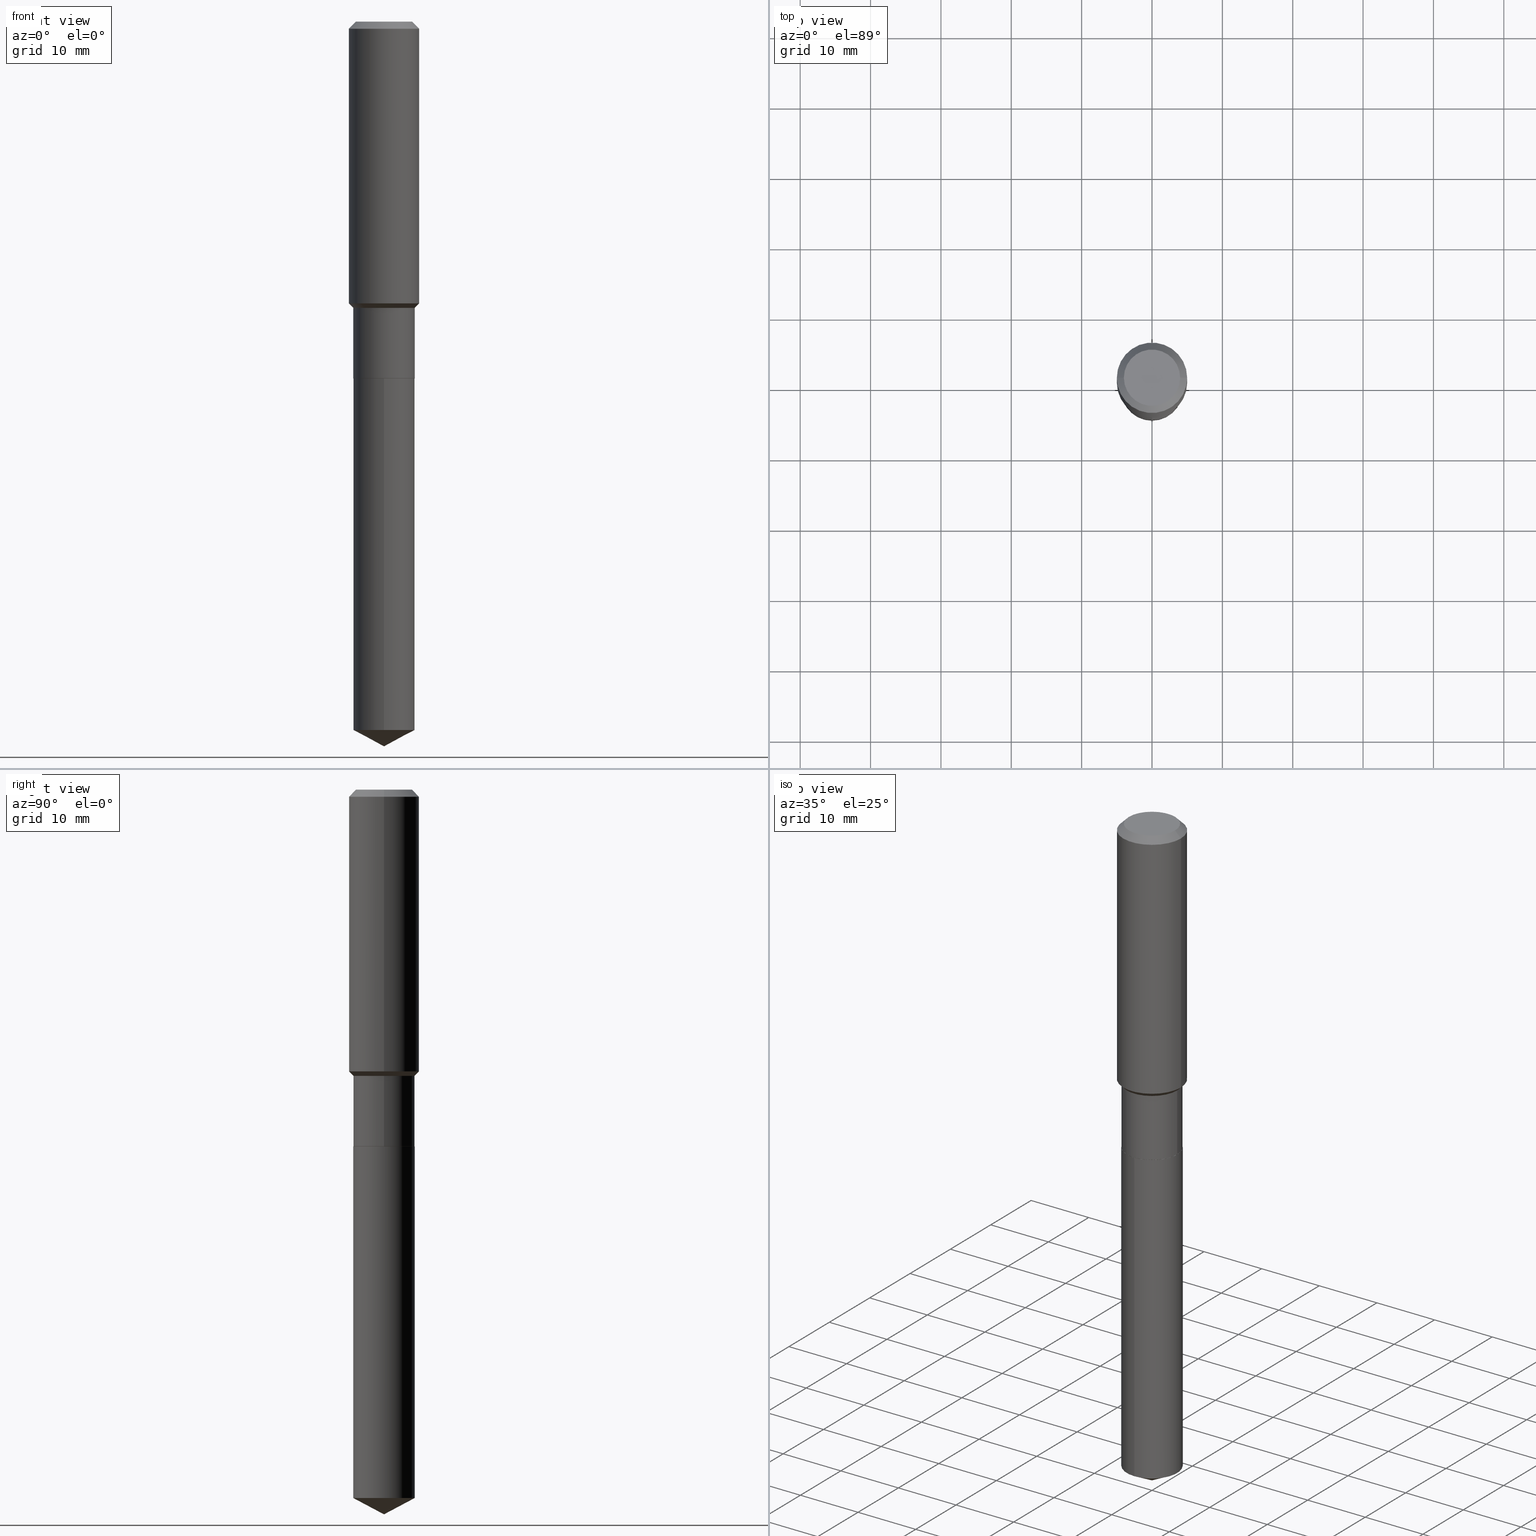
[diagram: canonical four-view strip — front | top / right | iso, engineering-drawing reading convention]
A machine part, canonical four-view strip (front | top / right | iso — engineering-drawing reading convention). The complete STEP part file that produces these views, byte-faithful:
ISO-10303-21;
HEADER;
FILE_DESCRIPTION (( 'STEP AP203' ),
    '1' );
FILE_NAME ('55018.STEP',
    '2024-04-24T16:24:03',
    ( '' ),
    ( '' ),
    'SwSTEP 2.0',
    'SolidWorks 2023',
    '' );
FILE_SCHEMA (( 'CONFIG_CONTROL_DESIGN' ));
ENDSEC;

DATA;
#1 = FACE_OUTER_BOUND ( 'NONE', #67, .T. ) ;
#2 = ADVANCED_FACE ( 'NONE', ( #182 ), #406, .T. ) ;
#3 = AXIS2_PLACEMENT_3D ( 'NONE', #8, #384, #45 ) ;
#4 = DIRECTION ( 'NONE',  ( 1.000000000000000000, -6.982962677686268288E-15, 0.000000000000000000 ) ) ;
#5 = CONICAL_SURFACE ( 'NONE', #404, 0.1968500000000000250, 0.7853981633974449483 ) ;
#6 = DIRECTION ( 'NONE',  ( -2.445468806185136597E-29, 3.491481338843145583E-15, 1.000000000000000000 ) ) ;
#7 = EDGE_CURVE ( 'NONE', #360, #12, #200, .T. ) ;
#8 = CARTESIAN_POINT ( 'NONE',  ( -8.636181159528330235E-28, 1.233020985790993605E-13, 35.31507874015748172 ) ) ;
#9 = VECTOR ( 'NONE', #277, 39.37007874015748143 ) ;
#10 = LOCAL_TIME ( 12, 24, 3.000000000000000000, #329 ) ;
#11 = CARTESIAN_POINT ( 'NONE',  ( 9.692852182386165404E-29, -1.383884090570368808E-14, -3.963599148697392494 ) ) ;
#12 = VERTEX_POINT ( 'NONE', #446 ) ;
#13 = DIRECTION ( 'NONE',  ( -6.982962677686266711E-15, -1.000000000000000000, 3.178415350394722068E-15 ) ) ;
#14 = EDGE_CURVE ( 'NONE', #140, #437, #72, .T. ) ;
#15 = VERTEX_POINT ( 'NONE', #371 ) ;
#16 = FACE_OUTER_BOUND ( 'NONE', #295, .T. ) ;
#17 = CONICAL_SURFACE ( 'NONE', #206, 74.04434902938389484, 1.082104136236488490 ) ;
#18 = CC_DESIGN_APPROVAL ( #56, ( #207 ) ) ;
#19 = EDGE_LOOP ( 'NONE', ( #109, #292, #434, #126 ) ) ;
#20 = DIRECTION ( 'NONE',  ( 2.438088387897960049E-29, -3.491481338843145188E-15, -1.000000000000000000 ) ) ;
#21 = ORIENTED_EDGE ( 'NONE', *, *, #270, .F. ) ;
#22 = CARTESIAN_POINT ( 'NONE',  ( 0.1968500000000000250, -1.512055823412797189E-15, -0.03937000000000027283 ) ) ;
#23 = ORIENTED_EDGE ( 'NONE', *, *, #234, .T. ) ;
#24 = EDGE_CURVE ( 'NONE', #130, #325, #313, .T. ) ;
#25 = EDGE_LOOP ( 'NONE', ( #209, #358 ) ) ;
#26 = LENGTH_MEASURE_WITH_UNIT ( LENGTH_MEASURE( 0.02539999999999999897 ), #362 );
#27 = CARTESIAN_POINT ( 'NONE',  ( 3.916173746224877726E-29, -5.591258216023413300E-15, -1.601399999999999935 ) ) ;
#28 = CIRCLE ( 'NONE', #240, 0.1718999999999999695 ) ;
#29 = ORIENTED_EDGE ( 'NONE', *, *, #159, .F. ) ;
#30 = APPLICATION_CONTEXT ( 'configuration controlled 3d designs of mechanical parts and assemblies' ) ;
#31 = CARTESIAN_POINT ( 'NONE',  ( 4.883112112190480497E-29, -6.971789937401992754E-15, -1.996799999999999908 ) ) ;
#32 = APPROVAL ( #407, 'UNSPECIFIED' ) ;
#33 = EDGE_LOOP ( 'NONE', ( #396, #211, #83, #370 ) ) ;
#34 = DIRECTION ( 'NONE',  ( -2.445468806185136597E-29, 3.491481338843145583E-15, 1.000000000000000000 ) ) ;
#35 = DIRECTION ( 'NONE',  ( 1.000000000000000000, -6.982962677686266711E-15, 4.876176775795936353E-29 ) ) ;
#36 = CARTESIAN_POINT ( 'NONE',  ( -1.200371284294220332E-15, -0.1719000000000069361, -1.996799999999999020 ) ) ;
#37 = CONICAL_SURFACE ( 'NONE', #458, 0.1718999999999999417, 0.7853981633974489451 ) ;
#38 = ORIENTED_EDGE ( 'NONE', *, *, #242, .F. ) ;
#39 = AXIS2_PLACEMENT_3D ( 'NONE', #310, #462, #422 ) ;
#40 = DIRECTION ( 'NONE',  ( -2.445468806185136597E-29, 3.491481338843145583E-15, 1.000000000000000000 ) ) ;
#41 = ORIENTED_EDGE ( 'NONE', *, *, #187, .F. ) ;
#42 = DATE_AND_TIME ( #120, #454 ) ;
#43 = DIRECTION ( 'NONE',  ( 6.982962677686265922E-15, 1.000000000000000000, -3.491485631794039954E-15 ) ) ;
#44 = ADVANCED_FACE ( 'NONE', ( #377 ), #473, .T. ) ;
#45 = DIRECTION ( 'NONE',  ( -6.982962677686265133E-15, -1.000000000000000000, 3.541896320645543908E-15 ) ) ;
#46 = DATE_TIME_ROLE ( 'classification_date' ) ;
#47 = CARTESIAN_POINT ( 'NONE',  ( 4.883112112190479937E-29, -6.971789937401991965E-15, -1.996799999999999686 ) ) ;
#48 = AXIS2_PLACEMENT_3D ( 'NONE', #471, #66, #478 ) ;
#49 = CIRCLE ( 'NONE', #464, 0.1968500000000002192 ) ;
#50 = CC_DESIGN_DATE_AND_TIME_ASSIGNMENT ( #232, #46, ( #273 ) ) ;
#51 = CYLINDRICAL_SURFACE ( 'NONE', #465, 0.1718999999999999695 ) ;
#52 = AXIS2_PLACEMENT_3D ( 'NONE', #397, #210, #106 ) ;
#53 = ORIENTED_EDGE ( 'NONE', *, *, #203, .T. ) ;
#54 = ORIENTED_EDGE ( 'NONE', *, *, #92, .F. ) ;
#55 = FACE_OUTER_BOUND ( 'NONE', #368, .T. ) ;
#56 = APPROVAL ( #105, 'UNSPECIFIED' ) ;
#57 = CARTESIAN_POINT ( 'NONE',  ( 0.1718999999999999417, -6.791629500317682541E-15, -1.601399999999999935 ) ) ;
#58 = CYLINDRICAL_SURFACE ( 'NONE', #383, 0.1968500000000001082 ) ;
#59 = CLOSED_SHELL ( 'NONE', ( #330, #90, #44, #445, #389 ) ) ;
#60 = PLANE ( 'NONE',  #483 ) ;
#61 = CIRCLE ( 'NONE', #161, 0.1718999999999999695 ) ;
#62 = EDGE_LOOP ( 'NONE', ( #21, #366, #53, #29 ) ) ;
#63 = CARTESIAN_POINT ( 'NONE',  ( 0.000000000000000000, 0.000000000000000000, 0.000000000000000000 ) ) ;
#64 = EDGE_CURVE ( 'NONE', #219, #325, #89, .T. ) ;
#65 = DIRECTION ( 'NONE',  ( 0.7071067811864267805, -2.468850131080992517E-15, 0.7071067811866682540 ) ) ;
#66 = DIRECTION ( 'NONE',  ( -2.445468806185136597E-29, 3.491481338843145583E-15, 1.000000000000000000 ) ) ;
#67 = EDGE_LOOP ( 'NONE', ( #41, #150, #351, #480 ) ) ;
#68 = ORIENTED_EDGE ( 'NONE', *, *, #346, .F. ) ;
#69 = DIRECTION ( 'NONE',  ( 1.000000000000000000, -6.982962677686266711E-15, 4.876176775795935793E-29 ) ) ;
#70 = CARTESIAN_POINT ( 'NONE',  ( 4.883112112190479937E-29, -6.971789937401991965E-15, -1.996799999999999686 ) ) ;
#71 = ORIENTED_EDGE ( 'NONE', *, *, #311, .T. ) ;
#72 = CIRCLE ( 'NONE', #218, 0.1718999999999999417 ) ;
#73 = APPROVAL_PERSON_ORGANIZATION ( #113, #56, #80 ) ;
#74 = ORIENTED_EDGE ( 'NONE', *, *, #115, .T. ) ;
#75 = PERSON_AND_ORGANIZATION_ROLE ( 'creator' ) ;
#76 = CARTESIAN_POINT ( 'NONE',  ( -0.1718999999999999417, -4.369835253251801494E-15, -1.601399999999999935 ) ) ;
#77 = ORIENTED_EDGE ( 'NONE', *, *, #64, .F. ) ;
#78 = LINE ( 'NONE', #36, #386 ) ;
#79 = ORIENTED_EDGE ( 'NONE', *, *, #153, .F. ) ;
#80 = APPROVAL_ROLE ( '' ) ;
#81 = PLANE ( 'NONE',  #128 ) ;
#82 = AXIS2_PLACEMENT_3D ( 'NONE', #222, #489, #35 ) ;
#83 = ORIENTED_EDGE ( 'NONE', *, *, #143, .T. ) ;
#84 = PRODUCT_DEFINITION ( 'UNKNOWN', '', #207, #271 ) ;
#85 = CARTESIAN_POINT ( 'NONE',  ( 0.1718999999999999695, -8.170415481026838913E-15, -1.996299999999999741 ) ) ;
#86 = PERSON_AND_ORGANIZATION_ROLE ( 'creator' ) ;
#87 = FACE_OUTER_BOUND ( 'NONE', #25, .T. ) ;
#88 = DIRECTION ( 'NONE',  ( -2.445465808433549493E-29, 3.491485631794039954E-15, 1.000000000000000000 ) ) ;
#89 = LINE ( 'NONE', #305, #431 ) ;
#90 = ADVANCED_FACE ( 'NONE', ( #55 ), #17, .T. ) ;
#91 = VECTOR ( 'NONE', #141, 39.37007874015748143 ) ;
#92 = EDGE_CURVE ( 'NONE', #12, #360, #228, .T. ) ;
#93 = VERTEX_POINT ( 'NONE', #165 ) ;
#94 = EDGE_LOOP ( 'NONE', ( #171, #180, #484, #393 ) ) ;
#95 = DIRECTION ( 'NONE',  ( 1.000000000000000000, -6.982962677686269077E-15, 0.000000000000000000 ) ) ;
#96 = EDGE_LOOP ( 'NONE', ( #472, #135, #286, #79 ) ) ;
#97 = PERSON_AND_ORGANIZATION ( #276, #119 ) ;
#98 = CARTESIAN_POINT ( 'NONE',  ( -0.1968500000000000250, 1.237136582792286225E-15, -0.03937000000000027283 ) ) ;
#99 = VECTOR ( 'NONE', #331, 39.37007874015748143 ) ;
#100 = AXIS2_PLACEMENT_3D ( 'NONE', #204, #167, #243 ) ;
#101 = DIRECTION ( 'NONE',  ( 1.000000000000000000, -6.982962677686265922E-15, 0.000000000000000000 ) ) ;
#102 = DIRECTION ( 'NONE',  ( -6.982962677686266711E-15, -1.000000000000000000, 3.178415350394722068E-15 ) ) ;
#103 = VERTEX_POINT ( 'NONE', #469 ) ;
#104 = APPLICATION_CONTEXT ( 'configuration controlled 3d designs of mechanical parts and assemblies' ) ;
#105 = APPROVAL_STATUS ( 'not_yet_approved' ) ;
#106 = DIRECTION ( 'NONE',  ( 1.000000000000000000, -6.982962677686266711E-15, 4.876176775795935793E-29 ) ) ;
#107 = EDGE_CURVE ( 'NONE', #426, #15, #272, .T. ) ;
#108 = AXIS2_PLACEMENT_3D ( 'NONE', #31, #327, #475 ) ;
#109 = ORIENTED_EDGE ( 'NONE', *, *, #421, .T. ) ;
#110 = DATE_AND_TIME ( #296, #178 ) ;
#111 = CARTESIAN_POINT ( 'NONE',  ( -0.1968500000000000250, -1.422099313121007378E-15, -0.03937000000000027283 ) ) ;
#112 = DIRECTION ( 'NONE',  ( -2.445468806185136597E-29, 3.491481338843145583E-15, 1.000000000000000000 ) ) ;
#113 = PERSON_AND_ORGANIZATION ( #276, #119 ) ;
#114 = DIRECTION ( 'NONE',  ( -2.445468806185136597E-29, 3.491481338843145583E-15, 1.000000000000000000 ) ) ;
#115 = EDGE_CURVE ( 'NONE', #328, #437, #395, .T. ) ;
#116 = DIRECTION ( 'NONE',  ( -2.445468806185136597E-29, 3.491481338843145583E-15, 1.000000000000000000 ) ) ;
#117 = CARTESIAN_POINT ( 'NONE',  ( -1.200371284294172211E-15, -0.1719000000000137640, -3.963599148697392049 ) ) ;
#118 = AXIS2_PLACEMENT_3D ( 'NONE', #258, #405, #408 ) ;
#119 = ORGANIZATION ( 'UNSPECIFIED', 'UNSPECIFIED', '' ) ;
#120 = CALENDAR_DATE ( 2024, 24, 4 ) ;
#121 = CARTESIAN_POINT ( 'NONE',  ( 0.1968500000000001082, -1.374596203102542397E-15, 9.598753983154305062E-30 ) ) ;
#122 = CC_DESIGN_PERSON_AND_ORGANIZATION_ASSIGNMENT ( #468, #132, ( #151 ) ) ;
#123 = AXIS2_PLACEMENT_3D ( 'NONE', #367, #414, #302 ) ;
#124 = AXIS2_PLACEMENT_3D ( 'NONE', #156, #199, #343 ) ;
#125 = FACE_OUTER_BOUND ( 'NONE', #345, .T. ) ;
#126 = ORIENTED_EDGE ( 'NONE', *, *, #311, .F. ) ;
#127 = CIRCLE ( 'NONE', #196, 0.1574800000000000089 ) ;
#128 = AXIS2_PLACEMENT_3D ( 'NONE', #47, #227, #43 ) ;
#129 = DIRECTION ( 'NONE',  ( -2.445468806185136597E-29, 3.491481338843145583E-15, 1.000000000000000000 ) ) ;
#130 = VERTEX_POINT ( 'NONE', #22 ) ;
#131 = EDGE_CURVE ( 'NONE', #354, #93, #189, .T. ) ;
#132 = PERSON_AND_ORGANIZATION_ROLE ( 'design_owner' ) ;
#133 = DIRECTION ( 'NONE',  ( -2.445468806185136597E-29, 3.491481338843145583E-15, 1.000000000000000000 ) ) ;
#134 = MANIFOLD_SOLID_BREP ( 'Body-Move/Copy2[2]', #373 ) ;
#135 = ORIENTED_EDGE ( 'NONE', *, *, #187, .T. ) ;
#136 = DIRECTION ( 'NONE',  ( -2.445468806185136597E-29, 3.491481338843145583E-15, 1.000000000000000000 ) ) ;
#137 = CARTESIAN_POINT ( 'NONE',  ( 0.1968500000000000250, -1.487948651171581601E-15, -0.03937000000000027283 ) ) ;
#138 = AXIS2_PLACEMENT_3D ( 'NONE', #70, #213, #102 ) ;
#139 = AXIS2_PLACEMENT_3D ( 'NONE', #162, #6, #201 ) ;
#140 = VERTEX_POINT ( 'NONE', #427 ) ;
#141 = DIRECTION ( 'NONE',  ( -2.445468806185136877E-29, 3.491481338843145188E-15, 1.000000000000000000 ) ) ;
#142 = ORIENTED_EDGE ( 'NONE', *, *, #374, .T. ) ;
#143 = EDGE_CURVE ( 'NONE', #93, #337, #172, .T. ) ;
#144 = DIRECTION ( 'NONE',  ( 1.000000000000000000, -6.982962677686265922E-15, 4.876223630392693006E-29 ) ) ;
#145 = ORIENTED_EDGE ( 'NONE', *, *, #481, .F. ) ;
#146 = PERSON_AND_ORGANIZATION ( #276, #119 ) ;
#147 = CARTESIAN_POINT ( 'NONE',  ( 9.916363853198043605E-29, -1.415797423692483087E-14, -4.054999999999999716 ) ) ;
#148 = ORIENTED_EDGE ( 'NONE', *, *, #242, .T. ) ;
#149 = CONICAL_SURFACE ( 'NONE', #245, 0.1718999999999999417, 0.7853981633974489451 ) ;
#150 = ORIENTED_EDGE ( 'NONE', *, *, #400, .F. ) ;
#151 = PRODUCT ( '55018', '55018', '', ( #175 ) ) ;
#152 = CARTESIAN_POINT ( 'NONE',  ( 3.916173746224877726E-29, -5.591258216023413300E-15, -1.601399999999999935 ) ) ;
#153 = EDGE_CURVE ( 'NONE', #428, #325, #353, .T. ) ;
#154 = DIRECTION ( 'NONE',  ( 6.273719981627772387E-15, 0.8829475928589306521, 0.4694715627858840334 ) ) ;
#155 = ORIENTED_EDGE ( 'NONE', *, *, #256, .F. ) ;
#156 = CARTESIAN_POINT ( 'NONE',  ( 0.000000000000000000, 0.000000000000000000, 0.000000000000000000 ) ) ;
#157 = AXIS2_PLACEMENT_3D ( 'NONE', #185, #229, #476 ) ;
#158 = DIRECTION ( 'NONE',  ( 2.445468806185136597E-29, -3.491481338843145583E-15, -1.000000000000000000 ) ) ;
#159 = EDGE_CURVE ( 'NONE', #219, #103, #49, .T. ) ;
#160 = CARTESIAN_POINT ( 'NONE',  ( 4.883112112190479937E-29, -6.971789937401991965E-15, -1.996799999999999686 ) ) ;
#161 = AXIS2_PLACEMENT_3D ( 'NONE', #291, #357, #390 ) ;
#162 = CARTESIAN_POINT ( 'NONE',  ( 3.855159299510557695E-29, -5.504145756619275933E-15, -1.576449999999999685 ) ) ;
#163 = EDGE_CURVE ( 'NONE', #15, #426, #312, .T. ) ;
#164 = DIRECTION ( 'NONE',  ( -2.445468806185136877E-29, 3.491481338843145188E-15, 1.000000000000000000 ) ) ;
#165 = CARTESIAN_POINT ( 'NONE',  ( 0.1713999999999999690, -8.168669740357418199E-15, -1.996799999999999908 ) ) ;
#166 = CIRCLE ( 'NONE', #236, 0.1968500000000000250 ) ;
#167 = DIRECTION ( 'NONE',  ( 0.000000000000000000, 0.000000000000000000, 1.000000000000000000 ) ) ;
#168 = PRODUCT_RELATED_PRODUCT_CATEGORY ( 'detail', '', ( #151 ) ) ;
#169 = LOCAL_TIME ( 12, 24, 3.000000000000000000, #378 ) ;
#170 = CARTESIAN_POINT ( 'NONE',  ( 2.660723506269796897E-29, -1.015437691158448916E-14, -1.996799999999999908 ) ) ;
#171 = ORIENTED_EDGE ( 'NONE', *, *, #14, .T. ) ;
#172 = LINE ( 'NONE', #173, #308 ) ;
#173 = CARTESIAN_POINT ( 'NONE',  ( 0.1713999999999999690, -8.168669740357418199E-15, -1.996799999999999908 ) ) ;
#174 = EDGE_LOOP ( 'NONE', ( #225, #74, #387, #68 ) ) ;
#175 = MECHANICAL_CONTEXT ( 'NONE', #104, 'mechanical' ) ;
#176 = DIRECTION ( 'NONE',  ( -2.445468806185136597E-29, 3.491481338843145583E-15, 1.000000000000000000 ) ) ;
#177 = CONICAL_SURFACE ( 'NONE', #452, 0.1713999999999999690, 0.7853981633972775267 ) ;
#178 = LOCAL_TIME ( 12, 24, 3.000000000000000000, #186 ) ;
#179 = ADVANCED_FACE ( 'NONE', ( #181 ), #436, .T. ) ;
#180 = ORIENTED_EDGE ( 'NONE', *, *, #270, .T. ) ;
#181 = FACE_OUTER_BOUND ( 'NONE', #248, .T. ) ;
#182 = FACE_OUTER_BOUND ( 'NONE', #466, .T. ) ;
#183 = APPROVAL_DATE_TIME ( #490, #365 ) ;
#184 = FACE_OUTER_BOUND ( 'NONE', #33, .T. ) ;
#185 = CARTESIAN_POINT ( 'NONE',  ( 9.692852182386165404E-29, -1.383884090570368808E-14, -3.963599148697392494 ) ) ;
#186 = COORDINATED_UNIVERSAL_TIME_OFFSET ( 5, 0, .BEHIND. ) ;
#187 = EDGE_CURVE ( 'NONE', #298, #130, #399, .T. ) ;
#188 = DIRECTION ( 'NONE',  ( -2.445465808433549493E-29, 3.491485631794039954E-15, 1.000000000000000000 ) ) ;
#189 = CIRCLE ( 'NONE', #48, 0.1713999999999999690 ) ;
#190 = LOCAL_TIME ( 12, 24, 3.000000000000000000, #477 ) ;
#191 = ORIENTED_EDGE ( 'NONE', *, *, #238, .F. ) ;
#192 = LINE ( 'NONE', #488, #376 ) ;
#193 = EDGE_LOOP ( 'NONE', ( #263, #401, #191, #274 ) ) ;
#194 = FACE_OUTER_BOUND ( 'NONE', #174, .T. ) ;
#195 = DIRECTION ( 'NONE',  ( 1.000000000000000000, -6.982962677686265922E-15, 4.876223630392693006E-29 ) ) ;
#196 = AXIS2_PLACEMENT_3D ( 'NONE', #316, #133, #144 ) ;
#197 = ADVANCED_FACE ( 'NONE', ( #285 ), #149, .T. ) ;
#198 = CONICAL_SURFACE ( 'NONE', #39, 0.1713999999999999690, 0.7853981633972775267 ) ;
#199 = DIRECTION ( 'NONE',  ( -2.445468806185136597E-29, 3.491481338843145583E-15, 1.000000000000000000 ) ) ;
#200 = CIRCLE ( 'NONE', #157, 0.1718999999999999695 ) ;
#201 = DIRECTION ( 'NONE',  ( 1.000000000000000000, -6.982962677686265922E-15, 0.000000000000000000 ) ) ;
#202 = DIRECTION ( 'NONE',  ( -2.445465808433549493E-29, 3.491485631794039954E-15, 1.000000000000000000 ) ) ;
#203 = EDGE_CURVE ( 'NONE', #140, #103, #439, .T. ) ;
#204 = CARTESIAN_POINT ( 'NONE',  ( 0.000000000000000000, 0.000000000000000000, 0.000000000000000000 ) ) ;
#205 = CARTESIAN_POINT ( 'NONE',  ( 9.916363853198042484E-29, -1.415797423692483087E-14, -4.054999999999999716 ) ) ;
#206 = AXIS2_PLACEMENT_3D ( 'NONE', #417, #88, #235 ) ;
#207 = PRODUCT_DEFINITION_FORMATION_WITH_SPECIFIED_SOURCE ( 'ANY', '', #151, .NOT_KNOWN. ) ;
#208 = CARTESIAN_POINT ( 'NONE',  ( -4.713871149261283817E-47, 6.730158695841841775E-33, 1.927594061857935365E-18 ) ) ;
#209 = ORIENTED_EDGE ( 'NONE', *, *, #163, .T. ) ;
#210 = DIRECTION ( 'NONE',  ( -2.445468806185136597E-29, 3.491481338843145583E-15, 1.000000000000000000 ) ) ;
#211 = ORIENTED_EDGE ( 'NONE', *, *, #131, .T. ) ;
#212 =( CONVERSION_BASED_UNIT ( 'INCH', #26 ) LENGTH_UNIT ( ) NAMED_UNIT ( #324 ) );
#213 = DIRECTION ( 'NONE',  ( -2.445465808433549493E-29, 3.491485631794039954E-15, 1.000000000000000000 ) ) ;
#214 = EDGE_CURVE ( 'NONE', #93, #354, #402, .T. ) ;
#215 = EDGE_LOOP ( 'NONE', ( #424, #364, #282, #441 ) ) ;
#216 = CARTESIAN_POINT ( 'NONE',  ( -0.1968500000000002192, -4.105442381275518145E-15, -1.576449999999999685 ) ) ;
#217 = EDGE_LOOP ( 'NONE', ( #355, #23 ) ) ;
#218 = AXIS2_PLACEMENT_3D ( 'NONE', #398, #112, #260 ) ;
#219 = VERTEX_POINT ( 'NONE', #216 ) ;
#220 = FACE_OUTER_BOUND ( 'NONE', #94, .T. ) ;
#221 = CC_DESIGN_PERSON_AND_ORGANIZATION_ASSIGNMENT ( #413, #257, ( #207 ) ) ;
#222 = CARTESIAN_POINT ( 'NONE',  ( 0.000000000000000000, 0.000000000000000000, 0.000000000000000000 ) ) ;
#223 = CYLINDRICAL_SURFACE ( 'NONE', #118, 0.1718999999999999695 ) ;
#224 = UNCERTAINTY_MEASURE_WITH_UNIT (LENGTH_MEASURE( 1.000000000000000082E-05 ), #212, 'distance_accuracy_value', 'NONE');
#225 = ORIENTED_EDGE ( 'NONE', *, *, #238, .T. ) ;
#226 = CALENDAR_DATE ( 2024, 24, 4 ) ;
#227 = DIRECTION ( 'NONE',  ( 2.445465808433548932E-29, -3.491485631794039954E-15, -1.000000000000000000 ) ) ;
#228 = CIRCLE ( 'NONE', #321, 0.1718999999999999695 ) ;
#229 = DIRECTION ( 'NONE',  ( -2.445465808433549493E-29, 3.491485631794039954E-15, 1.000000000000000000 ) ) ;
#230 = PERSON_AND_ORGANIZATION ( #276, #119 ) ;
#231 = FACE_OUTER_BOUND ( 'NONE', #96, .T. ) ;
#232 = DATE_AND_TIME ( #332, #169 ) ;
#233 = DIRECTION ( 'NONE',  ( -0.7071067811864267805, 7.493145998869918709E-15, 0.7071067811866682540 ) ) ;
#234 = EDGE_CURVE ( 'NONE', #298, #428, #127, .T. ) ;
#235 = DIRECTION ( 'NONE',  ( -6.982962677686265133E-15, -1.000000000000000000, 3.541896320645543908E-15 ) ) ;
#236 = AXIS2_PLACEMENT_3D ( 'NONE', #255, #444, #304 ) ;
#237 = CIRCLE ( 'NONE', #139, 0.1968500000000002192 ) ;
#238 = EDGE_CURVE ( 'NONE', #337, #328, #61, .T. ) ;
#239 = VECTOR ( 'NONE', #416, 39.37007874015748143 ) ;
#240 = AXIS2_PLACEMENT_3D ( 'NONE', #334, #114, #4 ) ;
#241 = ORIENTED_EDGE ( 'NONE', *, *, #7, .F. ) ;
#242 = EDGE_CURVE ( 'NONE', #323, #360, #388, .T. ) ;
#243 = DIRECTION ( 'NONE',  ( 1.000000000000000000, 0.000000000000000000, 0.000000000000000000 ) ) ;
#244 = FACE_OUTER_BOUND ( 'NONE', #217, .T. ) ;
#245 = AXIS2_PLACEMENT_3D ( 'NONE', #27, #176, #322 ) ;
#246 = CC_DESIGN_SECURITY_CLASSIFICATION ( #273, ( #207 ) ) ;
#247 = CARTESIAN_POINT ( 'NONE',  ( 3.855159299510557695E-29, -5.504145756619275933E-15, -1.576449999999999685 ) ) ;
#248 = EDGE_LOOP ( 'NONE', ( #77, #470, #71, #317 ) ) ;
#249 = LINE ( 'NONE', #429, #309 ) ;
#250 = ADVANCED_FACE ( 'NONE', ( #16 ), #349, .F. ) ;
#251 = CARTESIAN_POINT ( 'NONE',  ( -0.1718999999999999417, 1.221422962771611806E-15, -8.455649420148180377E-30 ) ) ;
#252 = ORIENTED_EDGE ( 'NONE', *, *, #115, .F. ) ;
#253 = DIRECTION ( 'NONE',  ( 0.7071067811865479058, -2.468850131082261399E-15, 0.7071067811865470176 ) ) ;
#254 = ORIENTED_EDGE ( 'NONE', *, *, #107, .F. ) ;
#255 = CARTESIAN_POINT ( 'NONE',  ( 9.627810689950950651E-31, -1.374596203102555808E-16, -0.03937000000000027283 ) ) ;
#256 = EDGE_CURVE ( 'NONE', #437, #140, #440, .T. ) ;
#257 = PERSON_AND_ORGANIZATION_ROLE ( 'design_supplier' ) ;
#258 = CARTESIAN_POINT ( 'NONE',  ( 4.883112112190479937E-29, -6.971789937401991965E-15, -1.996799999999999686 ) ) ;
#259 = ORIENTED_EDGE ( 'NONE', *, *, #346, .T. ) ;
#260 = DIRECTION ( 'NONE',  ( 1.000000000000000000, -6.982962677686269077E-15, 0.000000000000000000 ) ) ;
#261 = PERSON_AND_ORGANIZATION ( #276, #119 ) ;
#262 = CARTESIAN_POINT ( 'NONE',  ( 9.627810689950950651E-31, -1.374596203102555808E-16, -0.03937000000000027283 ) ) ;
#263 = ORIENTED_EDGE ( 'NONE', *, *, #214, .T. ) ;
#264 = CARTESIAN_POINT ( 'NONE',  ( 0.1574800000000000089, -1.284169937930321189E-15, 3.855188123724205385E-18 ) ) ;
#265 = VECTOR ( 'NONE', #253, 39.37007874015748854 ) ;
#266 = CALENDAR_DATE ( 2024, 24, 4 ) ;
#267 = ADVANCED_FACE ( 'NONE', ( #244 ), #60, .F. ) ;
#268 = CARTESIAN_POINT ( 'NONE',  ( 0.1718999999999999417, -1.200371284294268847E-15, 8.382147877593211677E-30 ) ) ;
#269 = FACE_OUTER_BOUND ( 'NONE', #19, .T. ) ;
#270 = EDGE_CURVE ( 'NONE', #437, #219, #293, .T. ) ;
#271 = DESIGN_CONTEXT ( 'detailed design', #30, 'design' ) ;
#272 = CIRCLE ( 'NONE', #138, 0.1718999999999999695 ) ;
#273 = SECURITY_CLASSIFICATION ( '', '', #372 ) ;
#274 = ORIENTED_EDGE ( 'NONE', *, *, #143, .F. ) ;
#275 = CC_DESIGN_PERSON_AND_ORGANIZATION_ASSIGNMENT ( #261, #450, ( #273 ) ) ;
#276 = PERSON ( 'UNSPECIFIED', 'UNSPECIFIED', 'UNSPECIFIED', ('UNSPECIFIED'), ('UNSPECIFIED'), ('UNSPECIFIED') ) ;
#277 = DIRECTION ( 'NONE',  ( -0.7071067811865451302, 2.468850131082231817E-15, -0.7071067811865499042 ) ) ;
#278 = PRODUCT_DEFINITION_SHAPE ( 'NONE', 'NONE',  #84 ) ;
#279 = APPLICATION_PROTOCOL_DEFINITION ( 'international standard', 'config_control_design', 1994, #30 ) ;
#280 = DIRECTION ( 'NONE',  ( -6.165590087286841551E-15, -0.8829475928589272105, 0.4694715627858901952 ) ) ;
#281 = CC_DESIGN_DATE_AND_TIME_ASSIGNMENT ( #110, #289, ( #84 ) ) ;
#282 = ORIENTED_EDGE ( 'NONE', *, *, #163, .F. ) ;
#283 =( NAMED_UNIT ( * ) PLANE_ANGLE_UNIT ( ) SI_UNIT ( $, .RADIAN. ) );
#284 = CC_DESIGN_APPROVAL ( #32, ( #273 ) ) ;
#285 = FACE_OUTER_BOUND ( 'NONE', #62, .T. ) ;
#286 = ORIENTED_EDGE ( 'NONE', *, *, #24, .T. ) ;
#287 = DIRECTION ( 'NONE',  ( -2.445468806185136597E-29, 3.491481338843145583E-15, 1.000000000000000000 ) ) ;
#288 = ORIENTED_EDGE ( 'NONE', *, *, #410, .F. ) ;
#289 = DATE_TIME_ROLE ( 'creation_date' ) ;
#290 = EDGE_CURVE ( 'NONE', #325, #130, #166, .T. ) ;
#291 = CARTESIAN_POINT ( 'NONE',  ( 4.881889377787387135E-29, -6.970044196732570461E-15, -1.996299999999999741 ) ) ;
#292 = ORIENTED_EDGE ( 'NONE', *, *, #64, .T. ) ;
#293 = LINE ( 'NONE', #76, #303 ) ;
#294 = ORIENTED_EDGE ( 'NONE', *, *, #131, .F. ) ;
#295 = EDGE_LOOP ( 'NONE', ( #432, #294 ) ) ;
#296 = CALENDAR_DATE ( 2024, 24, 4 ) ;
#297 = CARTESIAN_POINT ( 'NONE',  ( -0.1713999999999999690, -5.751270461135069068E-15, -1.996799999999999908 ) ) ;
#298 = VERTEX_POINT ( 'NONE', #264 ) ;
#299 = CARTESIAN_POINT ( 'NONE',  ( -0.1713999999999999690, -5.753919688309181058E-15, -1.996799999999999908 ) ) ;
#300 = ADVANCED_FACE ( 'NONE', ( #1 ), #333, .T. ) ;
#301 = EDGE_LOOP ( 'NONE', ( #288, #148, #54 ) ) ;
#302 = DIRECTION ( 'NONE',  ( -1.000000000000000000, 6.982962677686265922E-15, 0.000000000000000000 ) ) ;
#303 = VECTOR ( 'NONE', #339, 39.37007874015748854 ) ;
#304 = DIRECTION ( 'NONE',  ( 1.000000000000000000, -6.982962677686265922E-15, 0.000000000000000000 ) ) ;
#305 = CARTESIAN_POINT ( 'NONE',  ( -0.1968500000000001082, 1.398703375343757985E-15, -9.682923725166787881E-30 ) ) ;
#306 = DIRECTION ( 'NONE',  ( -2.445465808433549493E-29, 3.491485631794039954E-15, 1.000000000000000000 ) ) ;
#307 = ADVANCED_FACE ( 'NONE', ( #220 ), #37, .T. ) ;
#308 = VECTOR ( 'NONE', #65, 39.37007874015748143 ) ;
#309 = VECTOR ( 'NONE', #319, 39.37007874015748143 ) ;
#310 = CARTESIAN_POINT ( 'NONE',  ( 4.883112112190480497E-29, -6.971789937401992754E-15, -1.996799999999999908 ) ) ;
#311 = EDGE_CURVE ( 'NONE', #103, #130, #411, .T. ) ;
#312 = CIRCLE ( 'NONE', #423, 0.1718999999999999695 ) ;
#313 = CIRCLE ( 'NONE', #344, 0.1968500000000000250 ) ;
#314 = APPLICATION_PROTOCOL_DEFINITION ( 'international standard', 'config_control_design', 1994, #104 ) ;
#315 = DIRECTION ( 'NONE',  ( -2.438088387897960049E-29, 3.491481338843145188E-15, 1.000000000000000000 ) ) ;
#316 = CARTESIAN_POINT ( 'NONE',  ( -9.427742298522567634E-47, 1.346031739168368355E-32, 3.855188123715870730E-18 ) ) ;
#317 = ORIENTED_EDGE ( 'NONE', *, *, #290, .F. ) ;
#318 = EDGE_CURVE ( 'NONE', #354, #328, #482, .T. ) ;
#319 = DIRECTION ( 'NONE',  ( -2.445465808433549493E-29, 3.491485631794039954E-15, 1.000000000000000000 ) ) ;
#320 = DIRECTION ( 'NONE',  ( -2.445465808433549493E-29, 3.491485631794039954E-15, 1.000000000000000000 ) ) ;
#321 = AXIS2_PLACEMENT_3D ( 'NONE', #11, #202, #13 ) ;
#322 = DIRECTION ( 'NONE',  ( 1.000000000000000000, -6.982962677686269077E-15, 0.000000000000000000 ) ) ;
#323 = VERTEX_POINT ( 'NONE', #147 ) ;
#324 = DIMENSIONAL_EXPONENTS ( 1.000000000000000000, 0.000000000000000000, 0.000000000000000000, 0.000000000000000000, 0.000000000000000000, 0.000000000000000000, 0.000000000000000000 ) ;
#325 = VERTEX_POINT ( 'NONE', #111 ) ;
#326 = APPROVAL_ROLE ( '' ) ;
#327 = DIRECTION ( 'NONE',  ( -2.445468806185136597E-29, 3.491481338843145583E-15, 1.000000000000000000 ) ) ;
#328 = VERTEX_POINT ( 'NONE', #379 ) ;
#329 = COORDINATED_UNIVERSAL_TIME_OFFSET ( 5, 0, .BEHIND. ) ;
#330 = ADVANCED_FACE ( 'NONE', ( #453 ), #223, .T. ) ;
#331 = DIRECTION ( 'NONE',  ( -2.445468806185136877E-29, 3.491481338843145188E-15, 1.000000000000000000 ) ) ;
#332 = CALENDAR_DATE ( 2024, 24, 4 ) ;
#333 = CONICAL_SURFACE ( 'NONE', #123, 0.1968500000000000250, 0.7853981633974449483 ) ;
#334 = CARTESIAN_POINT ( 'NONE',  ( 4.881889377787387135E-29, -6.970044196732570461E-15, -1.996299999999999741 ) ) ;
#335 = DIRECTION ( 'NONE',  ( -1.000000000000000000, 6.982962677686265922E-15, 0.000000000000000000 ) ) ;
#336 = ADVANCED_FACE ( 'NONE', ( #184 ), #177, .T. ) ;
#337 = VERTEX_POINT ( 'NONE', #85 ) ;
#338 = CYLINDRICAL_SURFACE ( 'NONE', #124, 0.1718999999999999417 ) ;
#339 = DIRECTION ( 'NONE',  ( -0.7071067811865479058, 7.493145998870355738E-15, 0.7071067811865470176 ) ) ;
#340 = EDGE_CURVE ( 'NONE', #360, #15, #78, .T. ) ;
#341 = FACE_OUTER_BOUND ( 'NONE', #193, .T. ) ;
#342 = CARTESIAN_POINT ( 'NONE',  ( 1.221422962771709230E-15, 0.1718999999999930028, -1.996800000000000130 ) ) ;
#343 = DIRECTION ( 'NONE',  ( 1.000000000000000000, -6.982962677686266711E-15, 4.876176775795936353E-29 ) ) ;
#344 = AXIS2_PLACEMENT_3D ( 'NONE', #449, #116, #412 ) ;
#345 = EDGE_LOOP ( 'NONE', ( #145, #348, #409, #254 ) ) ;
#346 = EDGE_CURVE ( 'NONE', #337, #140, #381, .T. ) ;
#347 = CARTESIAN_POINT ( 'NONE',  ( -0.1574800000000000089, 1.168406772637159618E-15, 3.855188123707939751E-18 ) ) ;
#348 = ORIENTED_EDGE ( 'NONE', *, *, #92, .T. ) ;
#349 = PLANE ( 'NONE',  #361 ) ;
#350 = VECTOR ( 'NONE', #359, 39.37007874015748143 ) ;
#351 = ORIENTED_EDGE ( 'NONE', *, *, #153, .T. ) ;
#352 =( NAMED_UNIT ( * ) SI_UNIT ( $, .STERADIAN. ) SOLID_ANGLE_UNIT ( ) );
#353 = LINE ( 'NONE', #98, #9 ) ;
#354 = VERTEX_POINT ( 'NONE', #297 ) ;
#355 = ORIENTED_EDGE ( 'NONE', *, *, #400, .T. ) ;
#356 = APPROVAL_ROLE ( '' ) ;
#357 = DIRECTION ( 'NONE',  ( -2.445468806185136597E-29, 3.491481338843145583E-15, 1.000000000000000000 ) ) ;
#358 = ORIENTED_EDGE ( 'NONE', *, *, #107, .T. ) ;
#359 = DIRECTION ( 'NONE',  ( 0.7071067811865451302, -7.319954787623248157E-15, -0.7071067811865499042 ) ) ;
#360 = VERTEX_POINT ( 'NONE', #117 ) ;
#361 = AXIS2_PLACEMENT_3D ( 'NONE', #170, #315, #467 ) ;
#362 =( LENGTH_UNIT ( ) NAMED_UNIT ( * ) SI_UNIT ( $, .METRE. ) );
#363 = DIRECTION ( 'NONE',  ( -6.982962677686266711E-15, -1.000000000000000000, 3.178415350394722068E-15 ) ) ;
#364 = ORIENTED_EDGE ( 'NONE', *, *, #481, .T. ) ;
#365 = APPROVAL ( #394, 'UNSPECIFIED' ) ;
#366 = ORIENTED_EDGE ( 'NONE', *, *, #256, .T. ) ;
#367 = CARTESIAN_POINT ( 'NONE',  ( 9.627810689950950651E-31, -1.374596203102555808E-16, -0.03937000000000027283 ) ) ;
#368 = EDGE_LOOP ( 'NONE', ( #38, #486, #241 ) ) ;
#369 = DIRECTION ( 'NONE',  ( 1.000000000000000000, -6.982962677686265133E-15, 0.000000000000000000 ) ) ;
#370 = ORIENTED_EDGE ( 'NONE', *, *, #374, .F. ) ;
#371 = CARTESIAN_POINT ( 'NONE',  ( -1.200371284294220332E-15, -0.1719000000000069361, -1.996799999999999020 ) ) ;
#372 = SECURITY_CLASSIFICATION_LEVEL ( 'unclassified' ) ;
#373 = CLOSED_SHELL ( 'NONE', ( #435, #385, #460, #307, #418, #2, #197, #179, #300, #267, #250, #336 ) ) ;
#374 = EDGE_CURVE ( 'NONE', #328, #337, #28, .T. ) ;
#375 = CARTESIAN_POINT ( 'NONE',  ( -9.427742298522567634E-47, 1.346031739168368355E-32, 3.855188123715870730E-18 ) ) ;
#376 = VECTOR ( 'NONE', #154, 39.37007874015748854 ) ;
#377 = FACE_OUTER_BOUND ( 'NONE', #301, .T. ) ;
#378 = COORDINATED_UNIVERSAL_TIME_OFFSET ( 5, 0, .BEHIND. ) ;
#379 = CARTESIAN_POINT ( 'NONE',  ( -0.1718999999999999695, -5.059228243606378892E-15, -1.996299999999999741 ) ) ;
#380 = APPROVAL_DATE_TIME ( #42, #56 ) ;
#381 = LINE ( 'NONE', #268, #239 ) ;
#382 = VECTOR ( 'NONE', #280, 39.37007874015748854 ) ;
#383 = AXIS2_PLACEMENT_3D ( 'NONE', #63, #136, #69 ) ;
#384 = DIRECTION ( 'NONE',  ( -2.445465808433549493E-29, 3.491485631794039954E-15, 1.000000000000000000 ) ) ;
#385 = ADVANCED_FACE ( 'NONE', ( #231 ), #5, .T. ) ;
#386 = VECTOR ( 'NONE', #188, 39.37007874015748143 ) ;
#387 = ORIENTED_EDGE ( 'NONE', *, *, #14, .F. ) ;
#388 = LINE ( 'NONE', #205, #382 ) ;
#389 = ADVANCED_FACE ( 'NONE', ( #87 ), #81, .F. ) ;
#390 = DIRECTION ( 'NONE',  ( 1.000000000000000000, -6.982962677686268288E-15, 0.000000000000000000 ) ) ;
#391 = VECTOR ( 'NONE', #233, 39.37007874015748143 ) ;
#392 = APPROVAL_PERSON_ORGANIZATION ( #230, #32, #326 ) ;
#393 = ORIENTED_EDGE ( 'NONE', *, *, #203, .F. ) ;
#394 = APPROVAL_STATUS ( 'not_yet_approved' ) ;
#395 = LINE ( 'NONE', #251, #91 ) ;
#396 = ORIENTED_EDGE ( 'NONE', *, *, #318, .F. ) ;
#397 = CARTESIAN_POINT ( 'NONE',  ( 0.000000000000000000, 0.000000000000000000, 0.000000000000000000 ) ) ;
#398 = CARTESIAN_POINT ( 'NONE',  ( 3.916173746224877726E-29, -5.591258216023413300E-15, -1.601399999999999935 ) ) ;
#399 = LINE ( 'NONE', #137, #350 ) ;
#400 = EDGE_CURVE ( 'NONE', #428, #298, #459, .T. ) ;
#401 = ORIENTED_EDGE ( 'NONE', *, *, #318, .T. ) ;
#402 = CIRCLE ( 'NONE', #108, 0.1713999999999999690 ) ;
#403 = DATE_AND_TIME ( #226, #190 ) ;
#404 = AXIS2_PLACEMENT_3D ( 'NONE', #262, #158, #335 ) ;
#405 = DIRECTION ( 'NONE',  ( -2.445465808433549493E-29, 3.491485631794039954E-15, 1.000000000000000000 ) ) ;
#406 = CYLINDRICAL_SURFACE ( 'NONE', #82, 0.1718999999999999417 ) ;
#407 = APPROVAL_STATUS ( 'not_yet_approved' ) ;
#408 = DIRECTION ( 'NONE',  ( -6.982962677686266711E-15, -1.000000000000000000, 3.178415350394722068E-15 ) ) ;
#409 = ORIENTED_EDGE ( 'NONE', *, *, #340, .T. ) ;
#410 = EDGE_CURVE ( 'NONE', #323, #12, #192, .T. ) ;
#411 = LINE ( 'NONE', #121, #99 ) ;
#412 = DIRECTION ( 'NONE',  ( 1.000000000000000000, -6.982962677686265922E-15, 0.000000000000000000 ) ) ;
#413 = PERSON_AND_ORGANIZATION ( #276, #119 ) ;
#414 = DIRECTION ( 'NONE',  ( 2.445468806185136597E-29, -3.491481338843145583E-15, -1.000000000000000000 ) ) ;
#415 = APPROVAL_PERSON_ORGANIZATION ( #97, #365, #356 ) ;
#416 = DIRECTION ( 'NONE',  ( -2.445468806185136877E-29, 3.491481338843145188E-15, 1.000000000000000000 ) ) ;
#417 = CARTESIAN_POINT ( 'NONE',  ( -8.636181159528330235E-28, 1.233020985790993605E-13, 35.31507874015748172 ) ) ;
#418 = ADVANCED_FACE ( 'NONE', ( #194 ), #338, .T. ) ;
#419 = AXIS2_PLACEMENT_3D ( 'NONE', #430, #129, #95 ) ;
#420 = CC_DESIGN_APPROVAL ( #365, ( #84 ) ) ;
#421 = EDGE_CURVE ( 'NONE', #103, #219, #237, .T. ) ;
#422 = DIRECTION ( 'NONE',  ( 1.000000000000000000, -6.982962677686265133E-15, 0.000000000000000000 ) ) ;
#423 = AXIS2_PLACEMENT_3D ( 'NONE', #433, #320, #363 ) ;
#424 = ORIENTED_EDGE ( 'NONE', *, *, #7, .T. ) ;
#425 = CC_DESIGN_PERSON_AND_ORGANIZATION_ASSIGNMENT ( #146, #86, ( #84 ) ) ;
#426 = VERTEX_POINT ( 'NONE', #342 ) ;
#427 = CARTESIAN_POINT ( 'NONE',  ( 0.1718999999999999417, -6.791629500317682541E-15, -1.601399999999999935 ) ) ;
#428 = VERTEX_POINT ( 'NONE', #347 ) ;
#429 = CARTESIAN_POINT ( 'NONE',  ( 1.221422962771660715E-15, 0.1718999999999930028, -1.996800000000000130 ) ) ;
#430 = CARTESIAN_POINT ( 'NONE',  ( 3.916173746224877726E-29, -5.591258216023413300E-15, -1.601399999999999935 ) ) ;
#431 = VECTOR ( 'NONE', #164, 39.37007874015748143 ) ;
#432 = ORIENTED_EDGE ( 'NONE', *, *, #214, .F. ) ;
#433 = CARTESIAN_POINT ( 'NONE',  ( 4.883112112190479937E-29, -6.971789937401991965E-15, -1.996799999999999686 ) ) ;
#434 = ORIENTED_EDGE ( 'NONE', *, *, #24, .F. ) ;
#435 = ADVANCED_FACE ( 'NONE', ( #341 ), #198, .T. ) ;
#436 = CYLINDRICAL_SURFACE ( 'NONE', #52, 0.1968500000000001082 ) ;
#437 = VERTEX_POINT ( 'NONE', #463 ) ;
#438 = SHAPE_DEFINITION_REPRESENTATION ( #278, #479 ) ;
#439 = LINE ( 'NONE', #57, #265 ) ;
#440 = CIRCLE ( 'NONE', #419, 0.1718999999999999417 ) ;
#441 = ORIENTED_EDGE ( 'NONE', *, *, #340, .F. ) ;
#442 =( GEOMETRIC_REPRESENTATION_CONTEXT ( 3 ) GLOBAL_UNCERTAINTY_ASSIGNED_CONTEXT ( ( #224 ) ) GLOBAL_UNIT_ASSIGNED_CONTEXT ( ( #212, #283, #352 ) ) REPRESENTATION_CONTEXT ( 'NONE', 'WORKASPACE' ) );
#443 = COORDINATED_UNIVERSAL_TIME_OFFSET ( 5, 0, .BEHIND. ) ;
#444 = DIRECTION ( 'NONE',  ( -2.445468806185136597E-29, 3.491481338843145583E-15, 1.000000000000000000 ) ) ;
#445 = ADVANCED_FACE ( 'NONE', ( #125 ), #51, .T. ) ;
#446 = CARTESIAN_POINT ( 'NONE',  ( 1.221422962771708638E-15, 0.1718999999999861472, -3.963599148697392938 ) ) ;
#447 = APPROVAL_DATE_TIME ( #403, #32 ) ;
#448 = DIRECTION ( 'NONE',  ( 1.000000000000000000, -6.982962677686269077E-15, 0.000000000000000000 ) ) ;
#449 = CARTESIAN_POINT ( 'NONE',  ( 9.627810689950950651E-31, -1.374596203102555808E-16, -0.03937000000000027283 ) ) ;
#450 = PERSON_AND_ORGANIZATION_ROLE ( 'classification_officer' ) ;
#451 = CARTESIAN_POINT ( 'NONE',  ( 4.883112112190480497E-29, -6.971789937401992754E-15, -1.996799999999999908 ) ) ;
#452 = AXIS2_PLACEMENT_3D ( 'NONE', #451, #456, #369 ) ;
#453 = FACE_OUTER_BOUND ( 'NONE', #215, .T. ) ;
#454 = LOCAL_TIME ( 12, 24, 3.000000000000000000, #443 ) ;
#455 = CC_DESIGN_PERSON_AND_ORGANIZATION_ASSIGNMENT ( #487, #75, ( #207 ) ) ;
#456 = DIRECTION ( 'NONE',  ( -2.445468806185136597E-29, 3.491481338843145583E-15, 1.000000000000000000 ) ) ;
#457 = DIRECTION ( 'NONE',  ( -6.982962677686266711E-15, -1.000000000000000000, 3.178415350394722068E-15 ) ) ;
#458 = AXIS2_PLACEMENT_3D ( 'NONE', #152, #34, #448 ) ;
#459 = CIRCLE ( 'NONE', #474, 0.1574800000000000089 ) ;
#460 = ADVANCED_FACE ( 'NONE', ( #269 ), #58, .T. ) ;
#461 = MANIFOLD_SOLID_BREP ( 'Body-Move/Copy2[1]', #59 ) ;
#462 = DIRECTION ( 'NONE',  ( -2.445468806185136597E-29, 3.491481338843145583E-15, 1.000000000000000000 ) ) ;
#463 = CARTESIAN_POINT ( 'NONE',  ( -0.1718999999999999417, -5.059228243606380469E-15, -1.601399999999999935 ) ) ;
#464 = AXIS2_PLACEMENT_3D ( 'NONE', #247, #287, #101 ) ;
#465 = AXIS2_PLACEMENT_3D ( 'NONE', #160, #306, #457 ) ;
#466 = EDGE_LOOP ( 'NONE', ( #252, #142, #259, #155 ) ) ;
#467 = DIRECTION ( 'NONE',  ( 1.000000000000000000, -6.982962677686265922E-15, 4.876176775795935793E-29 ) ) ;
#468 = PERSON_AND_ORGANIZATION ( #276, #119 ) ;
#469 = CARTESIAN_POINT ( 'NONE',  ( 0.1968500000000002192, -6.878741959721819908E-15, -1.576449999999999685 ) ) ;
#470 = ORIENTED_EDGE ( 'NONE', *, *, #159, .T. ) ;
#471 = CARTESIAN_POINT ( 'NONE',  ( 4.883112112190480497E-29, -6.971789937401992754E-15, -1.996799999999999908 ) ) ;
#472 = ORIENTED_EDGE ( 'NONE', *, *, #234, .F. ) ;
#473 = CONICAL_SURFACE ( 'NONE', #3, 74.04434902938389484, 1.082104136236488490 ) ;
#474 = AXIS2_PLACEMENT_3D ( 'NONE', #375, #40, #195 ) ;
#475 = DIRECTION ( 'NONE',  ( 1.000000000000000000, -6.982962677686265133E-15, 0.000000000000000000 ) ) ;
#476 = DIRECTION ( 'NONE',  ( -6.982962677686266711E-15, -1.000000000000000000, 3.178415350394722068E-15 ) ) ;
#477 = COORDINATED_UNIVERSAL_TIME_OFFSET ( 5, 0, .BEHIND. ) ;
#478 = DIRECTION ( 'NONE',  ( 1.000000000000000000, -6.982962677686265133E-15, 0.000000000000000000 ) ) ;
#479 = ADVANCED_BREP_SHAPE_REPRESENTATION ( '55018', ( #461, #134, #100 ), #442 ) ;
#480 = ORIENTED_EDGE ( 'NONE', *, *, #290, .T. ) ;
#481 = EDGE_CURVE ( 'NONE', #12, #426, #249, .T. ) ;
#482 = LINE ( 'NONE', #299, #391 ) ;
#483 = AXIS2_PLACEMENT_3D ( 'NONE', #208, #20, #485 ) ;
#484 = ORIENTED_EDGE ( 'NONE', *, *, #421, .F. ) ;
#485 = DIRECTION ( 'NONE',  ( -1.000000000000000000, 6.982962677686265922E-15, -4.876176775795935793E-29 ) ) ;
#486 = ORIENTED_EDGE ( 'NONE', *, *, #410, .T. ) ;
#487 = PERSON_AND_ORGANIZATION ( #276, #119 ) ;
#488 = CARTESIAN_POINT ( 'NONE',  ( 9.916375929997518348E-29, -1.415795709259613803E-14, -4.054999999999999716 ) ) ;
#489 = DIRECTION ( 'NONE',  ( -2.445468806185136597E-29, 3.491481338843145583E-15, 1.000000000000000000 ) ) ;
#490 = DATE_AND_TIME ( #266, #10 ) ;
ENDSEC;
END-ISO-10303-21;
